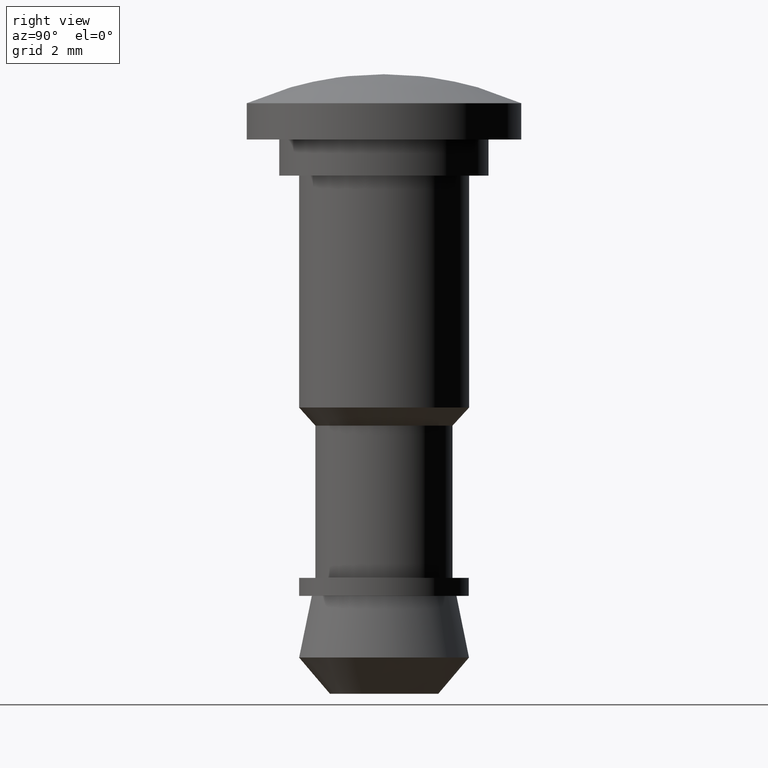
[diagram: clean part render]
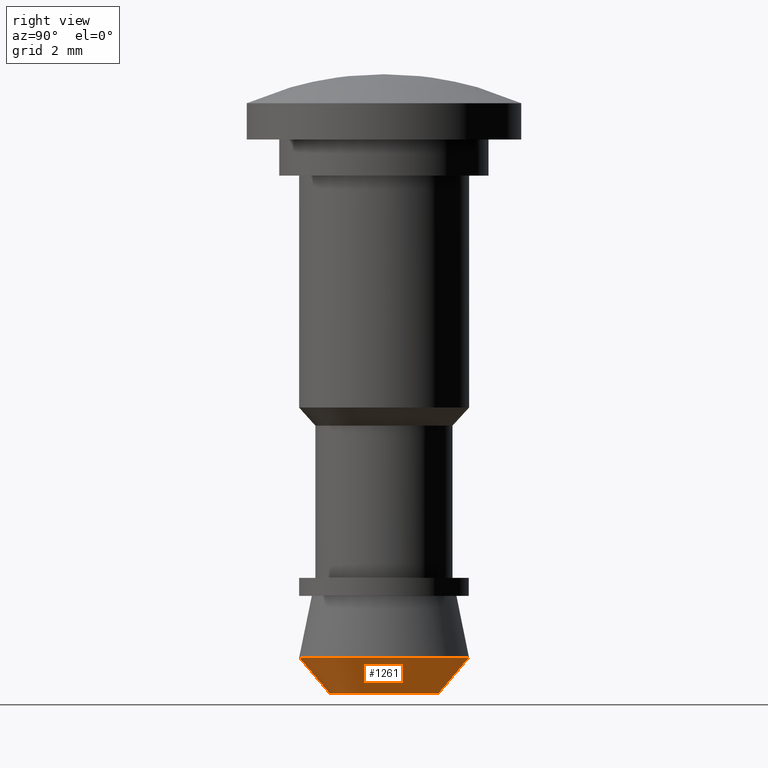
[diagram: same view with one face highlighted and labeled with its STEP entity id]
A machine part, right view. The second image highlights one B-rep face of the part: STEP entity #1261.
In plain terms, the highlighted face is a freeform B-spline surface patch.
Its self-contained STEP definition (entity closure, byte-faithful):
#940=CARTESIAN_POINT('',(0.268134337348762,2.334633233307251,-13.299905292481110));
#941=VERTEX_POINT('',#940);
#942=CARTESIAN_POINT('',(2.349980501392765,0.0,-13.299905292479099));
#943=VERTEX_POINT('',#942);
#944=CARTESIAN_POINT('',(0.268134337348762,2.334633233307251,-13.299905292481110));
#945=CARTESIAN_POINT('',(2.349980501392765,2.095531676059459,-13.299905292479099));
#946=CARTESIAN_POINT('',(2.349980501392765,0.0,-13.299905292479099));
#954=(BOUNDED_CURVE()B_SPLINE_CURVE(2,(#944,#945,#946),.UNSPECIFIED.,.F.,.U.)B_SPLINE_CURVE_WITH_KNOTS((3,3),(0.269767755878482,0.500000000000000),.UNSPECIFIED.)CURVE()GEOMETRIC_REPRESENTATION_ITEM()RATIONAL_B_SPLINE_CURVE((0.957343736456970,0.730266147778416,1.0))REPRESENTATION_ITEM(''));
#955=EDGE_CURVE('',#941,#943,#954,.T.);
#1001=CARTESIAN_POINT('',(0.184377345131891,-2.342736295773937,-13.299905292476980));
#1002=VERTEX_POINT('',#1001);
#1016=CARTESIAN_POINT('',(2.349980501392765,0.0,-13.299905292479099));
#1017=CARTESIAN_POINT('',(2.349980501392764,-2.172299631042863,-13.299905292479099));
#1018=CARTESIAN_POINT('',(0.184377345131891,-2.342736295773938,-13.299905292476984));
#1026=(BOUNDED_CURVE()B_SPLINE_CURVE(2,(#1016,#1017,#1018),.UNSPECIFIED.,.F.,.U.)B_SPLINE_CURVE_WITH_KNOTS((3,3),(0.500000000000000,0.736331300630659),.UNSPECIFIED.)CURVE()GEOMETRIC_REPRESENTATION_ITEM()RATIONAL_B_SPLINE_CURVE((1.0,0.723120658607667,0.969723356167416))REPRESENTATION_ITEM(''));
#1027=EDGE_CURVE('',#943,#1002,#1026,.T.);
#1054=CARTESIAN_POINT('',(-0.184377345131891,2.342736295773938,-13.299905292476980));
#1055=VERTEX_POINT('',#1054);
#1056=CARTESIAN_POINT('',(-0.184377345131891,2.342736295773938,-13.299905292476977));
#1057=CARTESIAN_POINT('',(-0.092330985380134,2.349980501392765,-13.299905292479099));
#1058=CARTESIAN_POINT('',(0.0,2.349980501392765,-13.299905292479099));
#1059=CARTESIAN_POINT('',(0.134506386276113,2.349980501392765,-13.299905292479107));
#1060=CARTESIAN_POINT('',(0.268134337348762,2.334633233307252,-13.299905292481103));
#1068=(BOUNDED_CURVE()B_SPLINE_CURVE(2,(#1056,#1057,#1058,#1059,#1060),.UNSPECIFIED.,.F.,.U.)B_SPLINE_CURVE_WITH_KNOTS((3,2,3),(0.236331300630658,0.250000000000000,0.269767755878481),.UNSPECIFIED.)CURVE()GEOMETRIC_REPRESENTATION_ITEM()RATIONAL_B_SPLINE_CURVE((0.969723356167415,0.983986122578880,1.0,0.976840633408132,0.957343736456971))REPRESENTATION_ITEM(''));
#1069=EDGE_CURVE('',#1055,#941,#1068,.T.);
#1157=CARTESIAN_POINT('',(-0.117680797736726,1.495276308868776,-14.299999999992091));
#1158=VERTEX_POINT('',#1157);
#1159=CARTESIAN_POINT('',(-0.117680797736726,1.495276308868776,-14.299999999992091));
#1160=CARTESIAN_POINT('',(-0.184377345131891,2.342736295773938,-13.299905292476980));
#1161=QUASI_UNIFORM_CURVE('',1,(#1159,#1160),.UNSPECIFIED.,.F.,.U.);
#1162=EDGE_CURVE('',#1158,#1055,#1161,.T.);
#1179=CARTESIAN_POINT('',(0.117680797736726,-1.495276308868776,-14.299999999992091));
#1180=VERTEX_POINT('',#1179);
#1196=CARTESIAN_POINT('',(0.117680797736726,-1.495276308868776,-14.299999999992091));
#1197=CARTESIAN_POINT('',(0.184377345131891,-2.342736295773937,-13.299905292476980));
#1198=QUASI_UNIFORM_CURVE('',1,(#1196,#1197),.UNSPECIFIED.,.F.,.U.);
#1199=EDGE_CURVE('',#1180,#1002,#1198,.T.);
#1206=CARTESIAN_POINT('',(0.116013383996317,-1.474089809193641,-14.325002367688031));
#1207=CARTESIAN_POINT('',(1.590103193189958,-1.358076425197325,-14.325002367688022));
#1208=CARTESIAN_POINT('',(1.474089809193641,0.116013383996317,-14.325002367688031));
#1209=CARTESIAN_POINT('',(1.358076425197325,1.590103193189958,-14.325002367688022));
#1210=CARTESIAN_POINT('',(-0.116013383996317,1.474089809193641,-14.325002367688031));
#1211=CARTESIAN_POINT('',(0.186086444145365,-2.364452457937722,-13.274277865598870));
#1212=CARTESIAN_POINT('',(2.550538902083087,-2.178366013792358,-13.274277865598874));
#1213=CARTESIAN_POINT('',(2.364452457937722,0.186086444145365,-13.274277865598870));
#1214=CARTESIAN_POINT('',(2.178366013792358,2.550538902083087,-13.274277865598874));
#1215=CARTESIAN_POINT('',(-0.186086444145365,2.364452457937722,-13.274277865598870));
#1223=(BOUNDED_SURFACE()B_SPLINE_SURFACE(2,1,((#1206,#1211),(#1207,#1212),(#1208,#1213),(#1209,#1214),(#1210,#1215)),.UNSPECIFIED.,.F.,.F.,.U.)B_SPLINE_SURFACE_WITH_KNOTS((3,2,3),(2,2),(0.0,3.929666954417243,7.859333908834486),(0.0,1.0),.UNSPECIFIED.)GEOMETRIC_REPRESENTATION_ITEM()RATIONAL_B_SPLINE_SURFACE(((1.0,1.0),(0.707106781186548,0.707106781186548),(1.0,1.0),(0.707106781186548,0.707106781186548),(1.0,1.0)))REPRESENTATION_ITEM('')SURFACE());
#1224=ORIENTED_EDGE('',*,*,#1069,.T.);
#1225=ORIENTED_EDGE('',*,*,#955,.T.);
#1226=ORIENTED_EDGE('',*,*,#1027,.T.);
#1227=ORIENTED_EDGE('',*,*,#1199,.F.);
#1228=CARTESIAN_POINT('',(1.499900000000000,0.0,-14.300000000000001));
#1229=VERTEX_POINT('',#1228);
#1230=CARTESIAN_POINT('',(1.499900000000000,0.0,-14.300000000000001));
#1231=CARTESIAN_POINT('',(1.499900000000001,-1.386493298337689,-14.300000000000008));
#1232=CARTESIAN_POINT('',(0.117680797736725,-1.495276308868776,-14.299999999992085));
#1240=(BOUNDED_CURVE()B_SPLINE_CURVE(2,(#1230,#1231,#1232),.UNSPECIFIED.,.F.,.U.)B_SPLINE_CURVE_WITH_KNOTS((3,3),(0.500000000000000,0.736331300620385),.UNSPECIFIED.)CURVE()GEOMETRIC_REPRESENTATION_ITEM()RATIONAL_B_SPLINE_CURVE((1.0,0.723120658619703,0.969723356145975))REPRESENTATION_ITEM(''));
#1241=EDGE_CURVE('',#1229,#1180,#1240,.T.);
#1242=ORIENTED_EDGE('',*,*,#1241,.F.);
#1243=CARTESIAN_POINT('',(-0.117680797736726,1.495276308868776,-14.299999999992091));
#1244=CARTESIAN_POINT('',(-0.058931231555057,1.499900000000001,-14.299999999999999));
#1245=CARTESIAN_POINT('',(0.0,1.499900000000000,-14.300000000000001));
#1246=CARTESIAN_POINT('',(1.499899999999999,1.499899999999999,-14.300000000000001));
#1247=CARTESIAN_POINT('',(1.499900000000000,0.0,-14.300000000000001));
#1255=(BOUNDED_CURVE()B_SPLINE_CURVE(2,(#1243,#1244,#1245,#1246,#1247),.UNSPECIFIED.,.F.,.U.)B_SPLINE_CURVE_WITH_KNOTS((3,2,3),(0.236331300620385,0.250000000000000,0.500000000000000),.UNSPECIFIED.)CURVE()GEOMETRIC_REPRESENTATION_ITEM()RATIONAL_B_SPLINE_CURVE((0.969723356145975,0.983986122566844,1.0,0.707106781186547,1.0))REPRESENTATION_ITEM(''));
#1256=EDGE_CURVE('',#1158,#1229,#1255,.T.);
#1257=ORIENTED_EDGE('',*,*,#1256,.F.);
#1258=ORIENTED_EDGE('',*,*,#1162,.T.);
#1259=EDGE_LOOP('',(#1224,#1225,#1226,#1227,#1242,#1257,#1258));
#1260=FACE_OUTER_BOUND('',#1259,.T.);
#1261=ADVANCED_FACE('',(#1260),#1223,.T.);